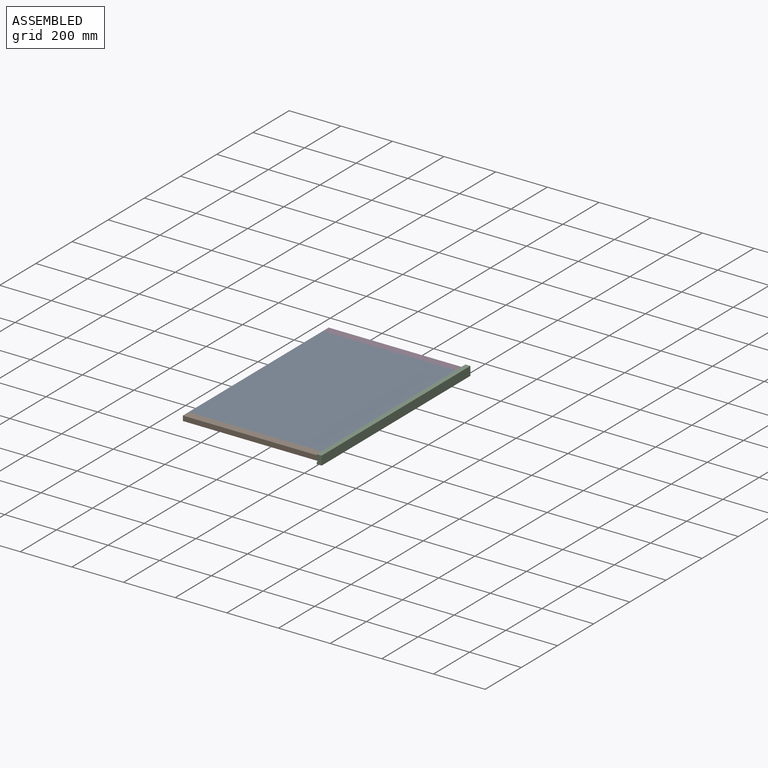
[diagram: assembled view]
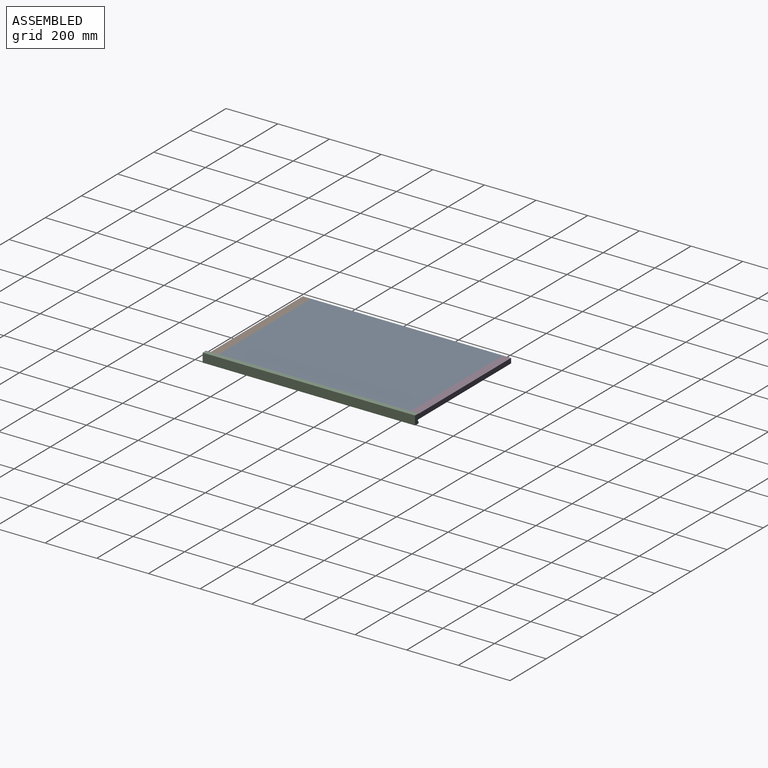
[diagram: assembled view, second angle]
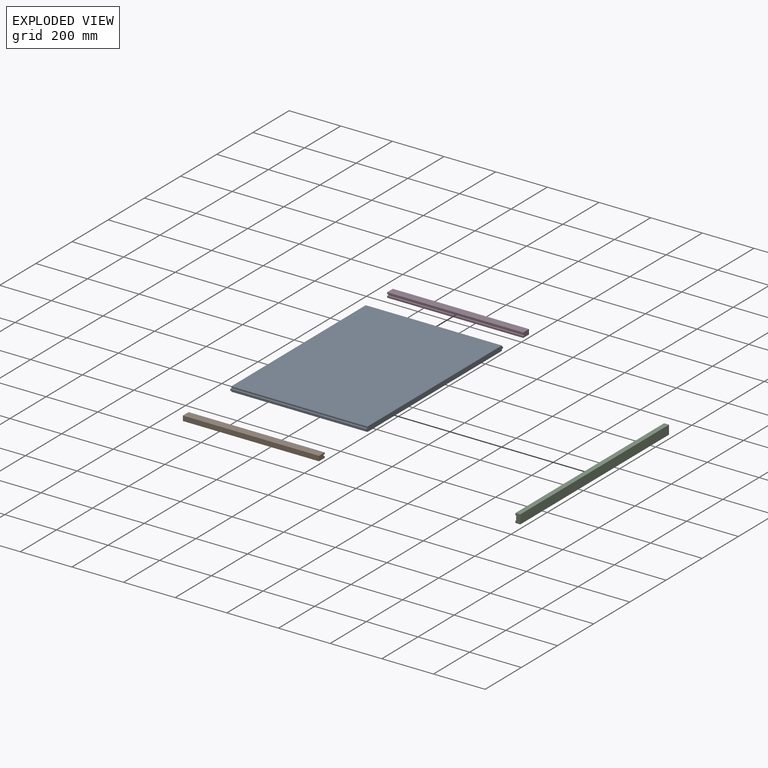
[diagram: exploded view]
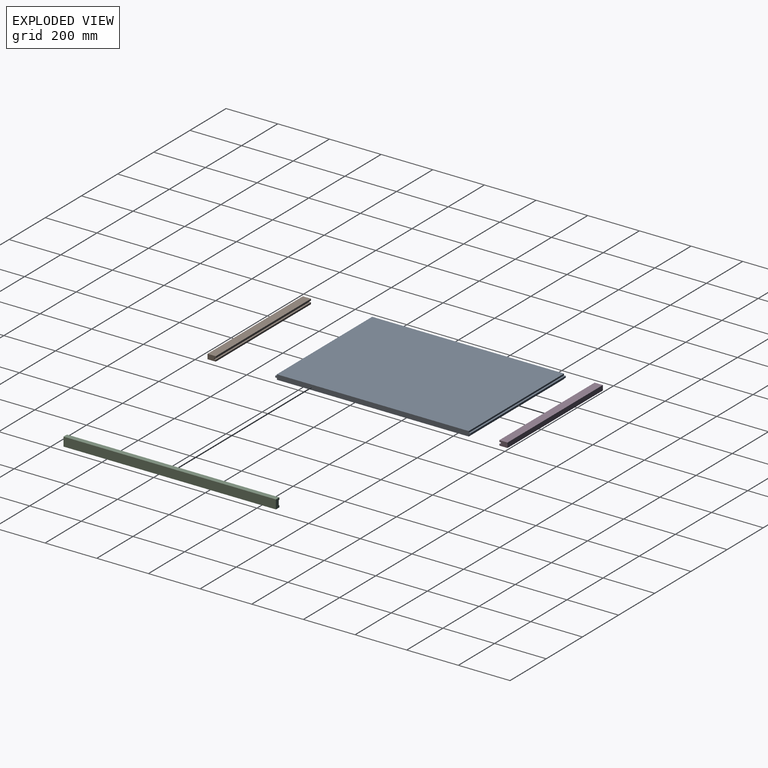
[diagram: exploded view, second angle]
ASSEMBLY  parts=4 mates=3
PART A: 14 faces, bbox 527.1x755.7x19.1 mm
  f0: plane 527.05x6.35mm, normal (0,-1,0), area 3346.8mm2, adj f1,f8,f9,f11
  f1: plane 742.95x527.05mm, normal (0,0,1), area 391571.8mm2, adj f0,f2,f9,f11
  f2: plane 527.05x6.35mm, normal (0,1,0), area 3346.8mm2, adj f1,f3,f9,f11
  f3: plane 527.05x6.35mm, normal (0,0,1), area 3346.8mm2, adj f2,f4,f9,f11
  f4: plane 527.05x6.35mm, normal (0,1,0), area 3346.8mm2, adj f3,f5,f9,f11
  f5: plane 527.05x6.35mm, normal (0,0,-1), area 3346.8mm2, adj f4,f6,f9,f11
  f6: plane 527.05x6.35mm, normal (0,1,0), area 3346.8mm2, adj f5,f7,f9,f11
  f7: plane 742.95x527.05mm, normal (0,0,-1), area 391571.8mm2, adj f6,f9,f10,f11
  f8: plane 527.05x6.35mm, normal (0,0,1), area 3346.8mm2, adj f0,f9,f11,f12
  f9: plane 755.65x19.05mm, normal (1,0,0), area 14233.8mm2, adj f0,f1,f2,f3,f4,f5,f6,f7
  f10: plane 527.05x6.35mm, normal (0,-1,0), area 3346.8mm2, adj f7,f9,f11,f13
  f11: plane 755.65x19.05mm, normal (-1,0,0), area 14233.8mm2, adj f0,f1,f2,f3,f4,f5,f6,f7
  f12: plane 527.05x6.35mm, normal (0,-1,0), area 3346.8mm2, adj f8,f9,f11,f13
  f13: plane 527.05x6.35mm, normal (0,0,-1), area 3346.8mm2, adj f9,f10,f11,f12
PART B: 10 faces, bbox 31.8x19.1x527.1 mm
  f0: plane 527.05x6.35mm, normal (0,-1,0), area 3346.8mm2, adj f1,f5,f6,f7
  f1: plane 527.05x6.35mm, normal (1,0,0), area 3346.8mm2, adj f0,f2,f5,f7
  f2: plane 527.05x31.75mm, normal (0,1,0), area 16733.8mm2, adj f1,f3,f5,f7
  f3: plane 527.05x19.05mm, normal (-1,0,0), area 10040.3mm2, adj f2,f4,f5,f7
  f4: plane 527.05x31.75mm, normal (0,-1,0), area 16733.8mm2, adj f3,f5,f7,f8
  f5: plane 31.75x19.05mm, normal (0,0,1), area 564.5mm2, adj f0,f1,f2,f3,f4,f6,f8,f9
  f6: plane 527.05x6.35mm, normal (1,0,0), area 3346.8mm2, adj f0,f5,f7,f9
  f7: plane 31.75x19.05mm, normal (0,0,-1), area 564.5mm2, adj f0,f1,f2,f3,f4,f6,f8,f9
  f8: plane 527.05x6.35mm, normal (1,0,0), area 3346.8mm2, adj f4,f5,f7,f9
  f9: plane 527.05x6.35mm, normal (0,1,0), area 3346.8mm2, adj f5,f6,f7,f8
PART C: 10 faces, bbox 34.9x19.1x822.3 mm
  f0: plane 822.33x3.18mm, normal (-1,0,0), area 2610.9mm2, adj f3,f5,f6,f7
  f1: plane 822.33x34.93mm, normal (0,-1,0), area 28719.7mm2, adj f2,f4,f5,f7
  f2: plane 822.33x19.05mm, normal (1,0,0), area 15665.3mm2, adj f1,f3,f5,f7
  f3: plane 822.33x7.94mm, normal (0,1,0), area 6527.2mm2, adj f0,f2,f5,f7
  f4: plane 822.33x19.05mm, normal (-1,0,0), area 15665.3mm2, adj f1,f5,f7,f8
  f5: plane 34.93x19.05mm, normal (0,0,-1), area 604.8mm2, adj f0,f1,f2,f3,f4,f6,f8,f9
  f6: plane 822.33x19.05mm, normal (0,1,0), area 15665.3mm2, adj f0,f5,f7,f9
  f7: plane 34.93x19.05mm, normal (0,0,1), area 604.8mm2, adj f0,f1,f2,f3,f4,f6,f8,f9
  f8: plane 822.33x7.94mm, normal (0,1,0), area 6527.2mm2, adj f4,f5,f7,f9
  f9: plane 822.33x3.18mm, normal (1,0,0), area 2610.9mm2, adj f5,f6,f7,f8
PART D: same geometry as B
PLACE A t=(-312.02,240.19,-173.98)mm fixed
PLACE B rot(axis=(0.58,0.58,0.58),120deg) t=(-312.02,-540.86,-154.93)mm
PLACE C rot(axis=(-0.58,0.58,0.58),120deg) t=(211.86,-548.79,-146.99)mm
PLACE D rot(axis=(-0.58,0.58,-0.58),120deg) t=(-312.02,265.59,-173.98)mm
MATE fastened C.f6 <-> D.f5  axis (-1,0,0) through (215.03,273.53,-154.93)mm
MATE fastened A.f9 <-> D.f5  axis (1,0,0) through (215.03,233.84,-154.93)mm
MATE fastened A.f9 <-> B.f5  axis (1,0,0) through (215.03,-509.11,-154.93)mm
